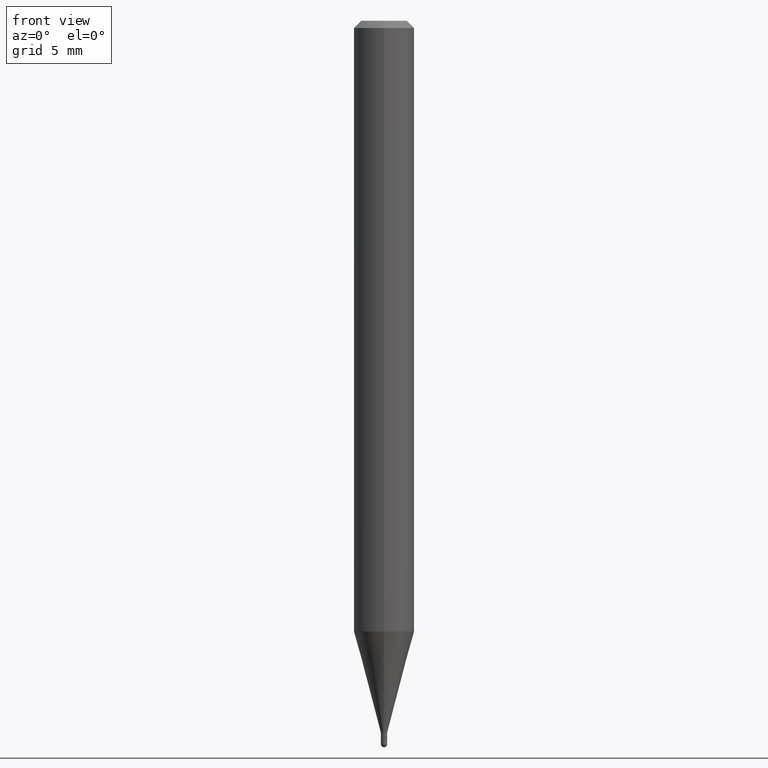
[diagram: clean part render]
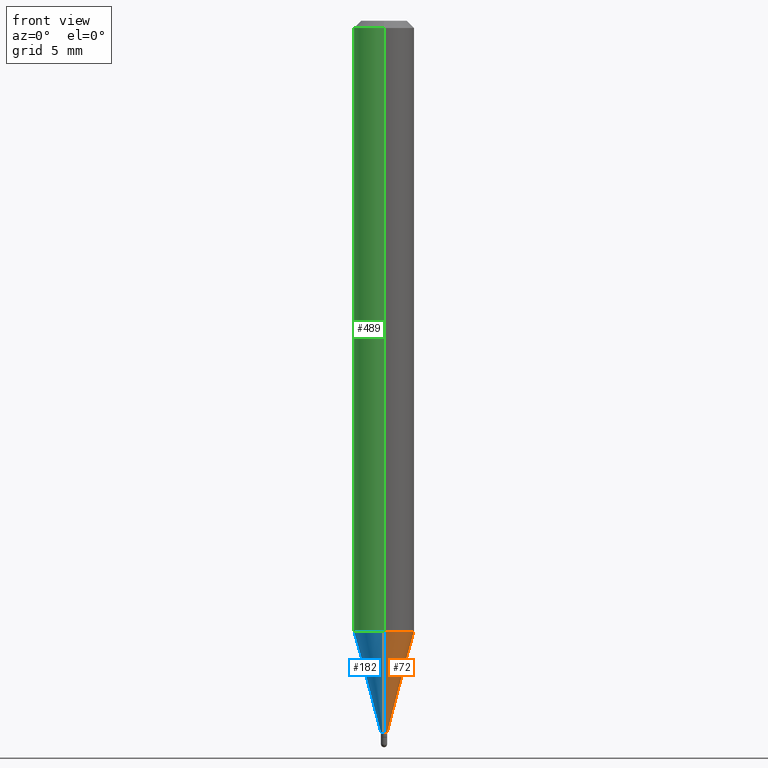
[diagram: same view with three faces highlighted in distinct colors, each labeled with its STEP entity id]
A machine part, front view with three faces highlighted in distinct colors.
Their STEP definitions:

[orange] entity #72 — the highlighted conical surface has half-angle 15 deg.
#28 = CARTESIAN_POINT ( 'NONE',  ( 2.451372438372677661E-16, 0.006499999999994789460, -1.469999999999999973 ) ) ;
#46 = CARTESIAN_POINT ( 'NONE',  ( 3.594828322685010882E-29, -5.132493066402420493E-15, -1.469999999999999973 ) ) ;
#47 = ORIENTED_EDGE ( 'NONE', *, *, #250, .T. ) ;
#64 = DIRECTION ( 'NONE',  ( -6.982962677686265922E-15, -1.000000000000000000, 4.370956789862821150E-15 ) ) ;
#69 = CARTESIAN_POINT ( 'NONE',  ( -4.538925740492423500E-17, -0.006500000000005055553, -1.469999999999999973 ) ) ;
#72 = ADVANCED_FACE ( 'NONE', ( #340 ), #333, .T. ) ;
#77 = LINE ( 'NONE', #477, #119 ) ;
#119 = VECTOR ( 'NONE', #210, 39.37007874015747433 ) ;
#144 = CARTESIAN_POINT ( 'NONE',  ( 3.594828322685010882E-29, -5.132493066402420493E-15, -1.469999999999999973 ) ) ;
#157 = DIRECTION ( 'NONE',  ( -1.807323732225328562E-15, -0.2588190451025179639, 0.9659258262890689783 ) ) ;
#165 = DIRECTION ( 'NONE',  ( -2.445461444003408996E-29, 3.491491881906408909E-15, 1.000000000000000000 ) ) ;
#192 = DIRECTION ( 'NONE',  ( -6.982962677686265133E-15, -1.000000000000000000, 0.000000000000000000 ) ) ;
#196 = CARTESIAN_POINT ( 'NONE',  ( -4.538925740492423500E-17, -0.006500000000005055553, -1.469999999999999973 ) ) ;
#210 = DIRECTION ( 'NONE',  ( 1.839019923739599526E-15, 0.2588190451025248473, 0.9659258262890673130 ) ) ;
#213 = ORIENTED_EDGE ( 'NONE', *, *, #258, .T. ) ;
#221 = EDGE_LOOP ( 'NONE', ( #213, #47, #383, #451 ) ) ;
#223 = CARTESIAN_POINT ( 'NONE',  ( 4.440892098500932831E-16, 0.06249999999999557992, -1.261005154776143389 ) ) ;
#250 = EDGE_CURVE ( 'NONE', #271, #432, #77, .T. ) ;
#258 = EDGE_CURVE ( 'NONE', #360, #271, #428, .T. ) ;
#271 = VERTEX_POINT ( 'NONE', #28 ) ;
#300 = DIRECTION ( 'NONE',  ( -2.445461444003408996E-29, 3.491491881906408909E-15, 1.000000000000000000 ) ) ;
#315 = CIRCLE ( 'NONE', #479, 0.06250000000000000000 ) ;
#333 = CONICAL_SURFACE ( 'NONE', #389, 0.006499999999999922506, 0.2617993877991501295 ) ;
#337 = CARTESIAN_POINT ( 'NONE',  ( -4.364351673553608545E-16, -0.06250000000000439926, -1.261005154776142723 ) ) ;
#340 = FACE_OUTER_BOUND ( 'NONE', #221, .T. ) ;
#358 = DIRECTION ( 'NONE',  ( -6.982962677686265133E-15, -1.000000000000000000, 0.000000000000000000 ) ) ;
#360 = VERTEX_POINT ( 'NONE', #69 ) ;
#362 = VERTEX_POINT ( 'NONE', #337 ) ;
#375 = LINE ( 'NONE', #196, #455 ) ;
#383 = ORIENTED_EDGE ( 'NONE', *, *, #402, .F. ) ;
#389 = AXIS2_PLACEMENT_3D ( 'NONE', #144, #300, #192 ) ;
#398 = AXIS2_PLACEMENT_3D ( 'NONE', #46, #165, #358 ) ;
#402 = EDGE_CURVE ( 'NONE', #362, #432, #315, .T. ) ;
#427 = DIRECTION ( 'NONE',  ( -2.445461444003408996E-29, 3.491491881906408909E-15, 1.000000000000000000 ) ) ;
#428 = CIRCLE ( 'NONE', #398, 0.006499999999999922506 ) ;
#432 = VERTEX_POINT ( 'NONE', #223 ) ;
#448 = EDGE_CURVE ( 'NONE', #360, #362, #375, .T. ) ;
#451 = ORIENTED_EDGE ( 'NONE', *, *, #448, .F. ) ;
#455 = VECTOR ( 'NONE', #157, 39.37007874015749564 ) ;
#469 = CARTESIAN_POINT ( 'NONE',  ( 3.083739486694608884E-29, -4.402789260943038280E-15, -1.261005154776143167 ) ) ;
#477 = CARTESIAN_POINT ( 'NONE',  ( 4.618527782444190393E-17, 0.006499999999994789460, -1.469999999999999973 ) ) ;
#479 = AXIS2_PLACEMENT_3D ( 'NONE', #469, #427, #64 ) ;

[blue] entity #182 — the highlighted conical surface has half-angle 15 deg.
#25 = CIRCLE ( 'NONE', #105, 0.06250000000000000000 ) ;
#28 = CARTESIAN_POINT ( 'NONE',  ( 2.451372438372677661E-16, 0.006499999999994789460, -1.469999999999999973 ) ) ;
#61 = CARTESIAN_POINT ( 'NONE',  ( 3.083739486694608884E-29, -4.402789260943038280E-15, -1.261005154776143167 ) ) ;
#69 = CARTESIAN_POINT ( 'NONE',  ( -4.538925740492423500E-17, -0.006500000000005055553, -1.469999999999999973 ) ) ;
#77 = LINE ( 'NONE', #477, #119 ) ;
#80 = EDGE_CURVE ( 'NONE', #271, #360, #166, .T. ) ;
#103 = DIRECTION ( 'NONE',  ( -2.445461444003408996E-29, 3.491491881906408909E-15, 1.000000000000000000 ) ) ;
#105 = AXIS2_PLACEMENT_3D ( 'NONE', #61, #103, #179 ) ;
#119 = VECTOR ( 'NONE', #210, 39.37007874015747433 ) ;
#140 = ORIENTED_EDGE ( 'NONE', *, *, #302, .F. ) ;
#147 = DIRECTION ( 'NONE',  ( -2.445461444003408996E-29, 3.491491881906408909E-15, 1.000000000000000000 ) ) ;
#157 = DIRECTION ( 'NONE',  ( -1.807323732225328562E-15, -0.2588190451025179639, 0.9659258262890689783 ) ) ;
#166 = CIRCLE ( 'NONE', #493, 0.006499999999999922506 ) ;
#179 = DIRECTION ( 'NONE',  ( -6.982962677686265922E-15, -1.000000000000000000, 4.370956789862821150E-15 ) ) ;
#182 = ADVANCED_FACE ( 'NONE', ( #200 ), #283, .T. ) ;
#195 = DIRECTION ( 'NONE',  ( -2.445461444003408996E-29, 3.491491881906408909E-15, 1.000000000000000000 ) ) ;
#196 = CARTESIAN_POINT ( 'NONE',  ( -4.538925740492423500E-17, -0.006500000000005055553, -1.469999999999999973 ) ) ;
#200 = FACE_OUTER_BOUND ( 'NONE', #494, .T. ) ;
#210 = DIRECTION ( 'NONE',  ( 1.839019923739599526E-15, 0.2588190451025248473, 0.9659258262890673130 ) ) ;
#223 = CARTESIAN_POINT ( 'NONE',  ( 4.440892098500932831E-16, 0.06249999999999557992, -1.261005154776143389 ) ) ;
#250 = EDGE_CURVE ( 'NONE', #271, #432, #77, .T. ) ;
#251 = ORIENTED_EDGE ( 'NONE', *, *, #250, .F. ) ;
#268 = CARTESIAN_POINT ( 'NONE',  ( 3.594828322685010882E-29, -5.132493066402420493E-15, -1.469999999999999973 ) ) ;
#271 = VERTEX_POINT ( 'NONE', #28 ) ;
#273 = DIRECTION ( 'NONE',  ( -6.982962677686265133E-15, -1.000000000000000000, 0.000000000000000000 ) ) ;
#283 = CONICAL_SURFACE ( 'NONE', #416, 0.006499999999999922506, 0.2617993877991501295 ) ;
#291 = ORIENTED_EDGE ( 'NONE', *, *, #448, .T. ) ;
#302 = EDGE_CURVE ( 'NONE', #432, #362, #25, .T. ) ;
#337 = CARTESIAN_POINT ( 'NONE',  ( -4.364351673553608545E-16, -0.06250000000000439926, -1.261005154776142723 ) ) ;
#352 = CARTESIAN_POINT ( 'NONE',  ( 3.594828322685010882E-29, -5.132493066402420493E-15, -1.469999999999999973 ) ) ;
#360 = VERTEX_POINT ( 'NONE', #69 ) ;
#362 = VERTEX_POINT ( 'NONE', #337 ) ;
#375 = LINE ( 'NONE', #196, #455 ) ;
#416 = AXIS2_PLACEMENT_3D ( 'NONE', #352, #195, #273 ) ;
#432 = VERTEX_POINT ( 'NONE', #223 ) ;
#448 = EDGE_CURVE ( 'NONE', #360, #362, #375, .T. ) ;
#455 = VECTOR ( 'NONE', #157, 39.37007874015749564 ) ;
#477 = CARTESIAN_POINT ( 'NONE',  ( 4.618527782444190393E-17, 0.006499999999994789460, -1.469999999999999973 ) ) ;
#493 = AXIS2_PLACEMENT_3D ( 'NONE', #268, #147, #503 ) ;
#494 = EDGE_LOOP ( 'NONE', ( #251, #498, #291, #140 ) ) ;
#498 = ORIENTED_EDGE ( 'NONE', *, *, #80, .T. ) ;
#503 = DIRECTION ( 'NONE',  ( -6.982962677686265133E-15, -1.000000000000000000, 0.000000000000000000 ) ) ;

[green] entity #489 — the highlighted cylindrical surface (edge-blend (fillet) strip) has radius 1.5875 mm, axis along (-0, 0, 1).
#4 = CARTESIAN_POINT ( 'NONE',  ( -4.364351673553916201E-16, -0.06250000000000000000, 2.182182426191505568E-16 ) ) ;
#17 = DIRECTION ( 'NONE',  ( -6.982962677686265922E-15, -1.000000000000000000, 3.483106191921935554E-15 ) ) ;
#25 = CIRCLE ( 'NONE', #105, 0.06250000000000000000 ) ;
#38 = LINE ( 'NONE', #110, #136 ) ;
#61 = CARTESIAN_POINT ( 'NONE',  ( 3.083739486694608884E-29, -4.402789260943038280E-15, -1.261005154776143167 ) ) ;
#79 = DIRECTION ( 'NONE',  ( -2.445461444003409276E-29, 3.491491881906408909E-15, 1.000000000000000000 ) ) ;
#82 = VECTOR ( 'NONE', #316, 39.37007874015748143 ) ;
#98 = FACE_OUTER_BOUND ( 'NONE', #128, .T. ) ;
#103 = DIRECTION ( 'NONE',  ( -2.445461444003408996E-29, 3.491491881906408909E-15, 1.000000000000000000 ) ) ;
#105 = AXIS2_PLACEMENT_3D ( 'NONE', #61, #103, #179 ) ;
#110 = CARTESIAN_POINT ( 'NONE',  ( 4.440892098500625669E-16, 0.06250000000000000000, -2.182182426191505568E-16 ) ) ;
#118 = EDGE_CURVE ( 'NONE', #432, #412, #38, .T. ) ;
#120 = AXIS2_PLACEMENT_3D ( 'NONE', #252, #385, #256 ) ;
#127 = EDGE_CURVE ( 'NONE', #362, #325, #354, .T. ) ;
#128 = EDGE_LOOP ( 'NONE', ( #292, #447, #168, #321 ) ) ;
#136 = VECTOR ( 'NONE', #79, 39.37007874015748143 ) ;
#168 = ORIENTED_EDGE ( 'NONE', *, *, #127, .T. ) ;
#179 = DIRECTION ( 'NONE',  ( -6.982962677686265922E-15, -1.000000000000000000, 4.370956789862821150E-15 ) ) ;
#220 = DIRECTION ( 'NONE',  ( -2.445461444003408996E-29, 3.491491881906408909E-15, 1.000000000000000000 ) ) ;
#223 = CARTESIAN_POINT ( 'NONE',  ( 4.440892098500932831E-16, 0.06249999999999557992, -1.261005154776143389 ) ) ;
#229 = CYLINDRICAL_SURFACE ( 'NONE', #120, 0.06250000000000000000 ) ;
#232 = CARTESIAN_POINT ( 'NONE',  ( -4.364351673553912750E-16, -0.06250000000000005551, -0.01499999999999954321 ) ) ;
#252 = CARTESIAN_POINT ( 'NONE',  ( 0.000000000000000000, 0.000000000000000000, 0.000000000000000000 ) ) ;
#256 = DIRECTION ( 'NONE',  ( -6.982962677686265922E-15, -1.000000000000000000, 3.491491881906408909E-15 ) ) ;
#269 = CARTESIAN_POINT ( 'NONE',  ( 4.440892098500935790E-16, 0.06249999999999995143, -0.01499999999999997863 ) ) ;
#287 = CIRCLE ( 'NONE', #305, 0.06250000000000000000 ) ;
#292 = ORIENTED_EDGE ( 'NONE', *, *, #118, .F. ) ;
#302 = EDGE_CURVE ( 'NONE', #432, #362, #25, .T. ) ;
#305 = AXIS2_PLACEMENT_3D ( 'NONE', #433, #220, #17 ) ;
#316 = DIRECTION ( 'NONE',  ( -2.445461444003409276E-29, 3.491491881906408909E-15, 1.000000000000000000 ) ) ;
#321 = ORIENTED_EDGE ( 'NONE', *, *, #413, .F. ) ;
#325 = VERTEX_POINT ( 'NONE', #232 ) ;
#337 = CARTESIAN_POINT ( 'NONE',  ( -4.364351673553608545E-16, -0.06250000000000439926, -1.261005154776142723 ) ) ;
#354 = LINE ( 'NONE', #4, #82 ) ;
#362 = VERTEX_POINT ( 'NONE', #337 ) ;
#385 = DIRECTION ( 'NONE',  ( -2.445461444003408996E-29, 3.491491881906408909E-15, 1.000000000000000000 ) ) ;
#412 = VERTEX_POINT ( 'NONE', #269 ) ;
#413 = EDGE_CURVE ( 'NONE', #412, #325, #287, .T. ) ;
#432 = VERTEX_POINT ( 'NONE', #223 ) ;
#433 = CARTESIAN_POINT ( 'NONE',  ( 3.668192166005054832E-31, -5.237237822859530139E-17, -0.01499999999999976179 ) ) ;
#447 = ORIENTED_EDGE ( 'NONE', *, *, #302, .T. ) ;
#489 = ADVANCED_FACE ( 'NONE', ( #98 ), #229, .T. ) ;